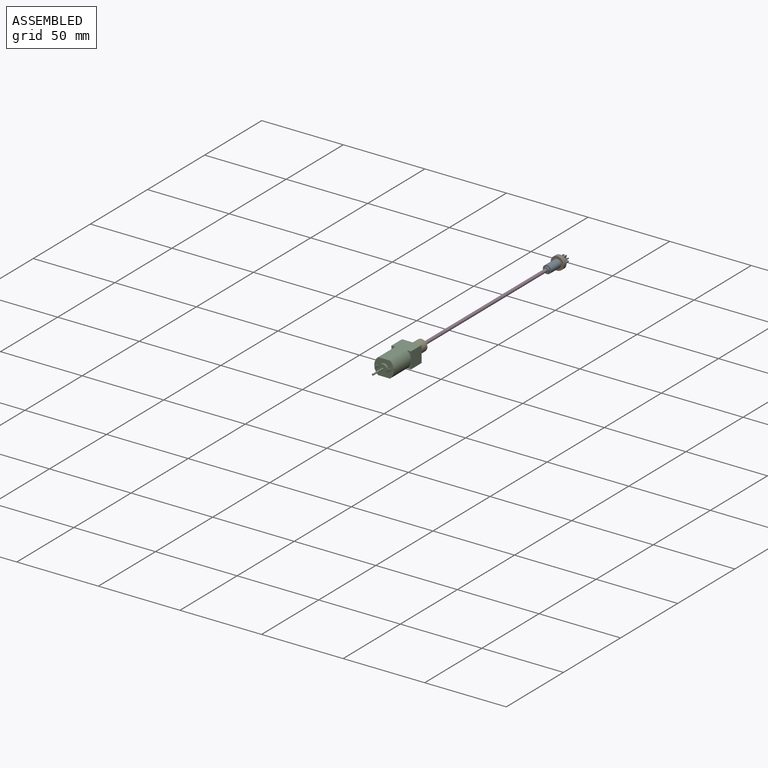
[diagram: assembled view]
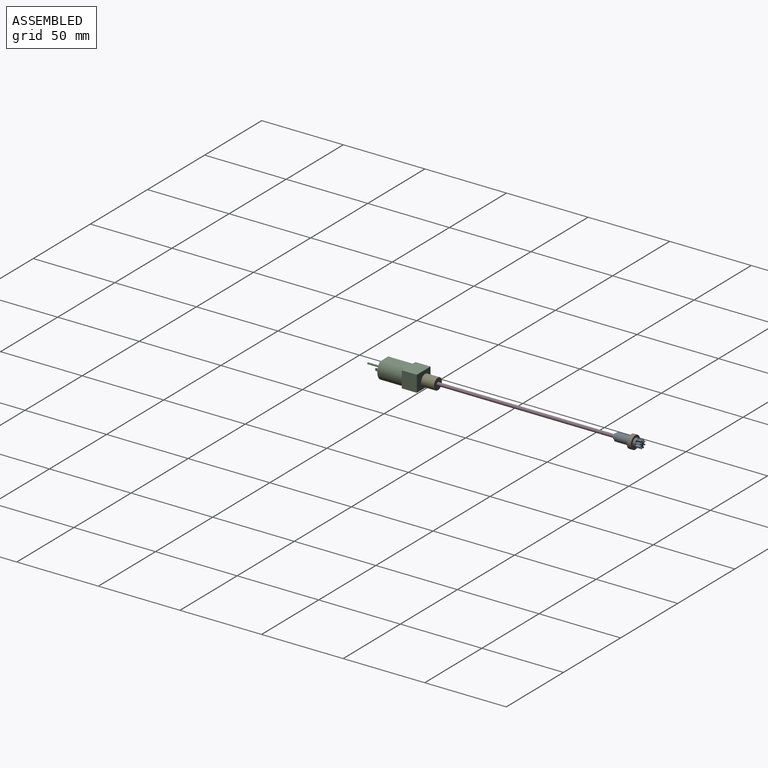
[diagram: assembled view, second angle]
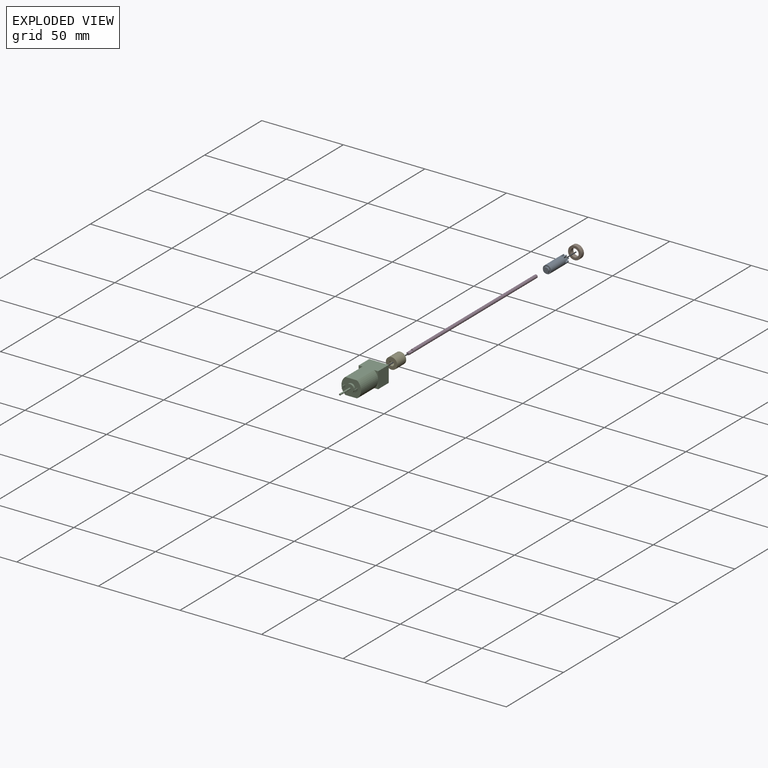
[diagram: exploded view]
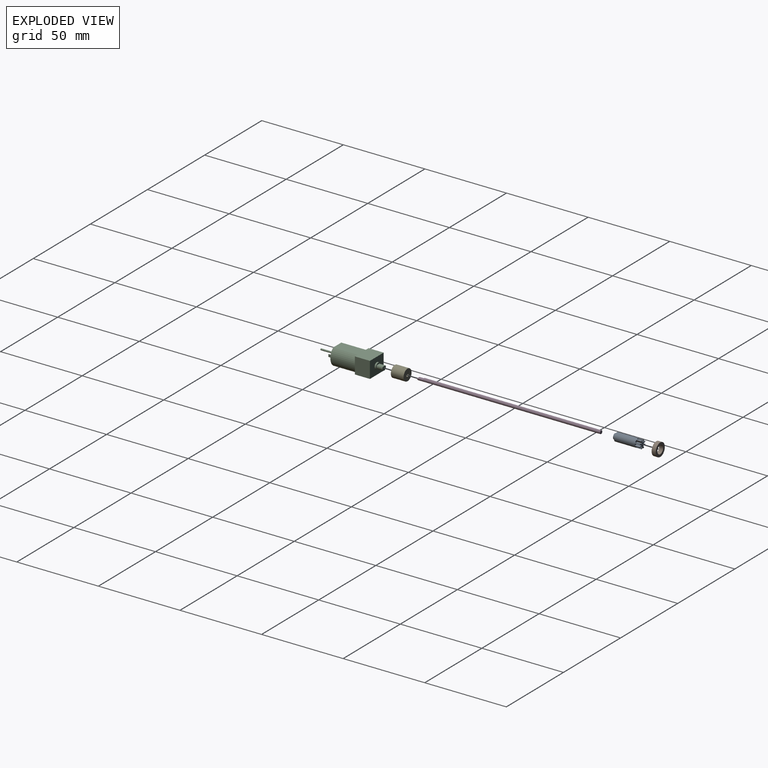
[diagram: exploded view, second angle]
ASSEMBLY  parts=5 mates=4
PART A: 37 faces, bbox 5x17x5 mm
  f0: cylinder r=2.5mm len=15.85mm, axis (0,1,0), area 219.9mm2, adj f1,f2,f6,f7,f8,f10,f11,f12
  f1: plane 4.85x4.85mm, normal (0,1,0), area 10.7mm2, adj f0,f5,f6,f7,f9,f10,f11,f13
  f2: plane 5x5mm, normal (0,-1,0), area 10.6mm2, adj f0,f3
  f3: cylinder r=1.7mm len=3.4mm, axis (0,1,0), area 11.7mm2, adj f2,f4
  f4: plane 3.4x3.4mm, normal (0,-1,0), area 9.1mm2, adj f3
  f5: plane 3x0.5mm, normal (0,0,1), area 1.5mm2, adj f1,f6,f7,f8
  f6: plane 3x1.25mm, normal (0.96,0,0.27), area 3.9mm2, adj f0,f1,f5,f8
  f7: plane 3x1.25mm, normal (-0.96,0,0.27), area 3.9mm2, adj f0,f1,f5,f8
  f8: plane 1.33x1.2mm, normal (0,1,0), area 1.1mm2, adj f0,f5,f6,f7
  f9: plane 3x0.35mm, normal (0.71,0,0.71), area 1.5mm2, adj f1,f10,f11,f12
  f10: plane 3x1.13mm, normal (0.87,0,-0.49), area 3.9mm2, adj f0,f1,f9,f12
  f11: plane 3x1.13mm, normal (-0.49,0,0.87), area 3.9mm2, adj f0,f1,f9,f12
  f12: plane 1.49x1.49mm, normal (0,1,0), area 1.1mm2, adj f0,f9,f10,f11
  f13: plane 3x0.5mm, normal (1,0,0), area 1.5mm2, adj f1,f14,f15,f16
  f14: plane 3x1.25mm, normal (0.27,0,-0.96), area 3.9mm2, adj f0,f1,f13,f16
  f15: plane 3x1.25mm, normal (0.27,0,0.96), area 3.9mm2, adj f0,f1,f13,f16
  f16: plane 1.33x1.2mm, normal (0,1,0), area 1.1mm2, adj f0,f13,f14,f15
  f17: plane 3x0.35mm, normal (0.71,0,-0.71), area 1.5mm2, adj f1,f18,f19,f20
  f18: plane 3x1.13mm, normal (-0.49,0,-0.87), area 3.9mm2, adj f0,f1,f17,f20
  f19: plane 3x1.13mm, normal (0.87,0,0.49), area 3.9mm2, adj f0,f1,f17,f20
  f20: plane 1.49x1.49mm, normal (0,1,0), area 1.1mm2, adj f0,f17,f18,f19
  f21: plane 3x0.5mm, normal (0,0,-1), area 1.5mm2, adj f1,f22,f23,f24
  f22: plane 3x1.25mm, normal (-0.96,0,-0.27), area 3.9mm2, adj f0,f1,f21,f24
  f23: plane 3x1.25mm, normal (0.96,0,-0.27), area 3.9mm2, adj f0,f1,f21,f24
  f24: plane 1.33x1.2mm, normal (0,1,0), area 1.1mm2, adj f0,f21,f22,f23
  f25: plane 3x0.35mm, normal (-0.71,0,-0.71), area 1.5mm2, adj f1,f26,f27,f28
  f26: plane 3x1.13mm, normal (-0.87,0,0.49), area 3.9mm2, adj f0,f1,f25,f28
  f27: plane 3x1.13mm, normal (0.49,0,-0.87), area 3.9mm2, adj f0,f1,f25,f28
  f28: plane 1.49x1.49mm, normal (0,1,0), area 1.1mm2, adj f0,f25,f26,f27
  f29: plane 3x0.5mm, normal (-1,0,0), area 1.5mm2, adj f1,f30,f31,f32
  f30: plane 3x1.25mm, normal (-0.27,0,0.96), area 3.9mm2, adj f0,f1,f29,f32
  f31: plane 3x1.25mm, normal (-0.27,0,-0.96), area 3.9mm2, adj f0,f1,f29,f32
  f32: plane 1.33x1.2mm, normal (0,1,0), area 1.1mm2, adj f0,f29,f30,f31
  f33: plane 3x0.35mm, normal (-0.71,0,0.71), area 1.5mm2, adj f1,f34,f35,f36
  f34: plane 3x1.13mm, normal (0.49,0,0.87), area 3.9mm2, adj f0,f1,f33,f36
  f35: plane 3x1.13mm, normal (-0.87,0,-0.49), area 3.9mm2, adj f0,f1,f33,f36
  f36: plane 1.49x1.49mm, normal (0,1,0), area 1.1mm2, adj f0,f33,f34,f35
PART B: 4 faces, bbox 8x2.5x8 mm
  f0: plane 8x8mm, normal (0,-1,0), area 30.6mm2, adj f1,f3
  f1: cylinder r=2.5mm len=5mm, axis (0,1,0), area 39.3mm2, adj f0,f2
  f2: plane 8x8mm, normal (0,1,0), area 30.6mm2, adj f1,f3
  f3: cylinder r=4mm len=8mm, axis (0,1,0), area 62.8mm2, adj f0,f2
PART C: 31 faces, bbox 12x38.8x10 mm
  f0: plane 24.25x12mm, normal (0,0,-1), area 219mm2, adj f1,f2,f3,f10,f11,f13,f14,f16
  f1: plane 10x9.25mm, normal (1,0,0), area 92.5mm2, adj f0,f4,f10,f12,f16
  f2: plane 12x10mm, normal (0,-1,0), area 84.7mm2, adj f0,f4,f11,f13,f17,f19,f20,f21
  f3: plane 10x9.25mm, normal (-1,0,0), area 92.5mm2, adj f0,f4,f10,f14,f15
  f4: plane 24.25x12mm, normal (0,0,1), area 219mm2, adj f1,f2,f3,f10,f11,f12,f13,f15
  f5: plane 3.6x2.24mm, normal (0,0,1), area 8mm2, adj f6,f7,f8
  f6: cylinder r=1.5mm len=3.6mm, axis (0,-1,0), area 24.8mm2, adj f5,f7,f8
  f7: plane 3x2.5mm, normal (0,1,0), area 6.3mm2, adj f5,f6
  f8: plane 4x4mm, normal (0,1,0), area 6.3mm2, adj f5,f6,f9
  f9: cylinder r=2mm len=4mm, axis (0,1,0), area 11.3mm2, adj f8,f10
  f10: plane 12x10mm, normal (0,1,0), area 107.4mm2, adj f0,f1,f3,f4,f9
  f11: cylinder r=6.41mm len=15mm, axis (0,-1,0), area 172.1mm2, adj f0,f2,f4,f12,f16
  f12: plane 5x2.4mm, normal (0,-1,0), area 3.6mm2, adj f1,f4,f11
  f13: cylinder r=6.41mm len=15mm, axis (0,-1,0), area 172.1mm2, adj f0,f2,f4,f14,f15
  f14: plane 5x2.4mm, normal (0,-1,0), area 3.6mm2, adj f0,f3,f13
  f15: plane 5x2.4mm, normal (0,-1,0), area 3.6mm2, adj f3,f4,f13
  f16: plane 5x2.4mm, normal (0,-1,0), area 3.6mm2, adj f0,f1,f11
  f17: cylinder r=2.5mm len=5mm, axis (0,1,0), area 18.8mm2, adj f2,f18
  f18: plane 5x5mm, normal (0,-1,0), area 18.8mm2, adj f17,f29
  f19: plane 2.6x0.35mm, normal (0,0,-1), area 0.9mm2, adj f2,f20,f22,f23
  f20: plane 2.6x1.5mm, normal (1,0,0), area 3.9mm2, adj f2,f19,f21,f23
  f21: plane 2.6x0.35mm, normal (0,0,1), area 0.9mm2, adj f2,f20,f22,f23
  f22: plane 2.6x1.5mm, normal (-1,0,0), area 3.9mm2, adj f2,f19,f21,f23
  f23: plane 1.5x0.35mm, normal (0,-1,0), area 0.5mm2, adj f19,f20,f21,f22
  f24: plane 2.6x0.35mm, normal (0,0,-1), area 0.9mm2, adj f2,f25,f27,f28
  f25: plane 2.6x1.5mm, normal (1,0,0), area 3.9mm2, adj f2,f24,f26,f28
  f26: plane 2.6x0.35mm, normal (0,0,1), area 0.9mm2, adj f2,f25,f27,f28
  f27: plane 2.6x1.5mm, normal (-1,0,0), area 3.9mm2, adj f2,f24,f26,f28
  f28: plane 1.5x0.35mm, normal (0,-1,0), area 0.5mm2, adj f24,f25,f26,f27
  f29: cylinder r=0.5mm len=8.8mm, axis (0,1,0), area 27.6mm2, adj f18,f30
  f30: plane 1x1mm, normal (0,-1,0), area 0.8mm2, adj f29
PART D: 5 faces, bbox 2x112x2 mm
  f0: cylinder r=1mm len=112mm, axis (0,1,0), area 695.1mm2, adj f1,f2,f3,f4
  f1: plane 2x2mm, normal (0,1,0), area 3.1mm2, adj f0
  f2: plane 1.88x0.66mm, normal (0,-1,0), area 0.9mm2, adj f0,f3
  f3: plane 3.5x1.88mm, normal (0,0,1), area 6.6mm2, adj f0,f2,f4
  f4: plane 2x1.34mm, normal (0,-1,0), area 2.2mm2, adj f0,f3
PART E: 9 faces, bbox 7x7.8x7 mm
  f0: plane 7x7mm, normal (0,-1,0), area 32.2mm2, adj f2,f6,f7
  f1: plane 7x7mm, normal (0,1,0), area 36.2mm2, adj f2,f3,f4
  f2: cylinder r=3.5mm len=7.8mm, axis (0,1,0), area 171.5mm2, adj f0,f1
  f3: plane 3.5x1.88mm, normal (0,0,-1), area 6.6mm2, adj f1,f4,f5
  f4: cylinder r=1mm len=3.5mm, axis (0,1,0), area 13.4mm2, adj f1,f3,f5
  f5: plane 2x1.34mm, normal (0,1,0), area 2.2mm2, adj f3,f4
  f6: plane 3.6x2.24mm, normal (0,0,-1), area 8mm2, adj f0,f7,f8
  f7: cylinder r=1.5mm len=3.6mm, axis (0,-1,0), area 24.8mm2, adj f0,f6,f8
  f8: plane 3x2.5mm, normal (0,-1,0), area 6.3mm2, adj f6,f7
PLACE A at identity fixed
PLACE B t=(0,0.9,0)mm
PLACE C t=(0,0,0.03)mm
PLACE D at identity
PLACE E at identity
MATE fastened C.f6 <-> E.f0  axis (0,1,0) through (0,-124.78,0.03)mm
MATE fastened E.f2 <-> D.f0  axis (0,1,0) through (0,-116.98,0)mm
MATE fastened B.f1 <-> A.f0  axis (0,1,0) through (0,4.07,0)mm
MATE fastened D.f0 <-> A.f0  axis (0,1,0) through (0,-8.48,0)mm
